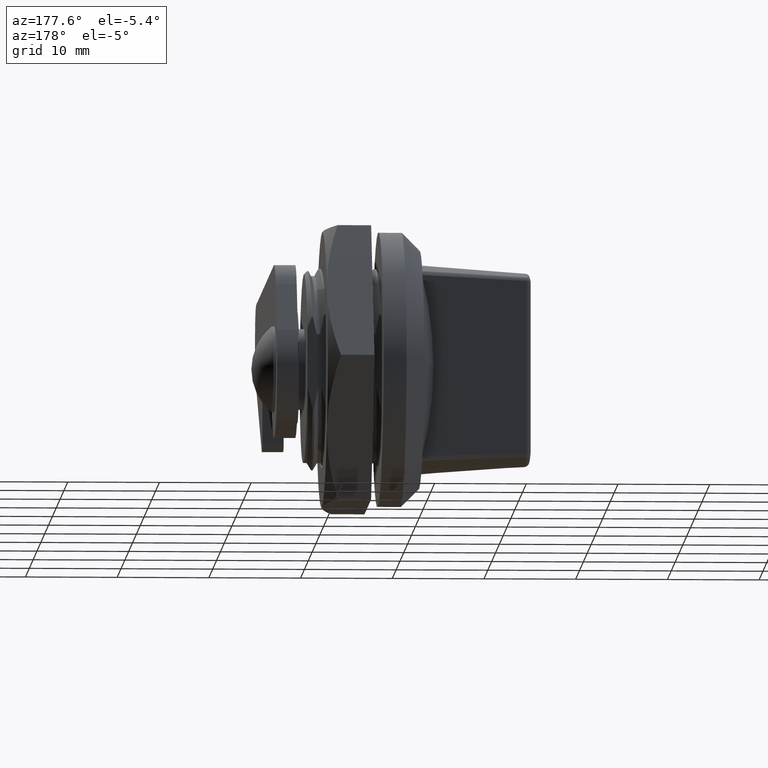
[diagram: clean part render]
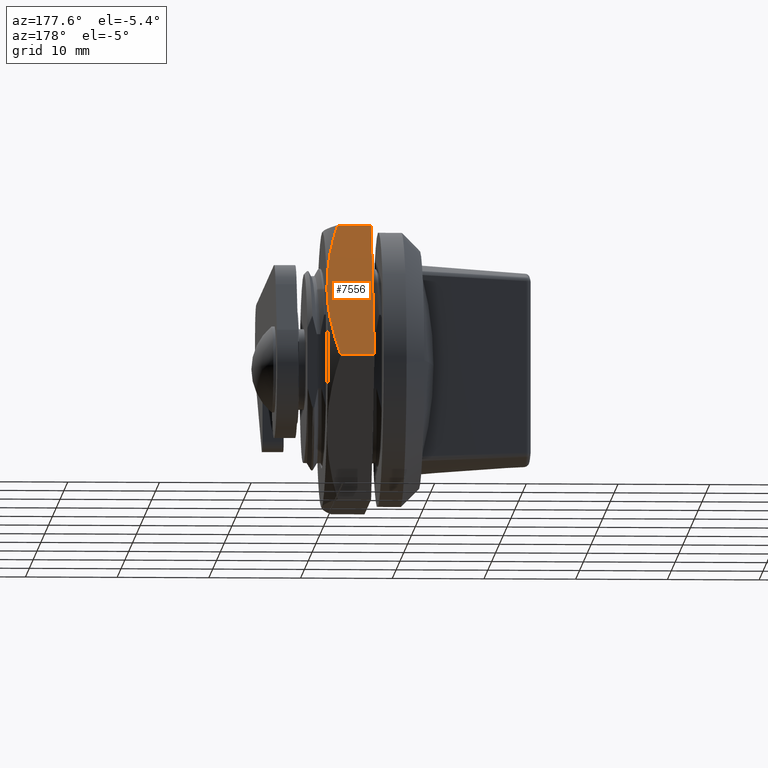
[diagram: same view with one face highlighted and labeled with its STEP entity id]
A machine part, auxiliary view. The second image highlights one B-rep face of the part: STEP entity #7556.
In plain terms, the highlighted planar face has unit normal (-0, -0.866, -0.5).
Its self-contained STEP definition (entity closure, byte-faithful):
#128 = LINE ( 'NONE', #13479, #22433 ) ;
#141 = PLANE ( 'NONE',  #20275 ) ;
#470 = CARTESIAN_POINT ( 'NONE',  ( 8.660254037844280700, -3.660254037754500100, 15.00000000000000000 ) ) ;
#869 = CARTESIAN_POINT ( 'NONE',  ( 8.660254037844280700, -3.660254037754500100, 15.00000000000000000 ) ) ;
#1200 = B_SPLINE_CURVE_WITH_KNOTS ( 'NONE', 3,
 ( #470, #13422, #15601, #2665, #17765, #4802 ),
 .UNSPECIFIED., .F., .F.,
 ( 4, 2, 4 ),
 ( 2.380728851188560000E-007, 0.004381617344485768000, 0.008762996616086418300 ),
 .UNSPECIFIED. ) ;
#1580 = CARTESIAN_POINT ( 'NONE',  ( 13.35786429844072700, -4.999999999909919200, 6.863500354490280800 ) ) ;
#1912 = B_SPLINE_CURVE_WITH_KNOTS ( 'NONE', 3,
 ( #27478, #1580, #16898, #3935, #19063, #6098, #21236, #8286 ),
 .UNSPECIFIED., .F., .F.,
 ( 4, 2, 2, 4 ),
 ( 0.008762996616086418300, 0.01094549440788718200, 0.01312799219968794800, 0.01749298778328947600 ),
 .UNSPECIFIED. ) ;
#2122 = VERTEX_POINT ( 'NONE', #7495 ) ;
#2205 = VECTOR ( 'NONE', #28087, 1000.000000000000000 ) ;
#2665 = CARTESIAN_POINT ( 'NONE',  ( 11.52410143690330100, -4.872315115852518200, 10.03967079970599500 ) ) ;
#2871 = LINE ( 'NONE', #25904, #2205 ) ;
#3364 = EDGE_CURVE ( 'NONE', #2122, #17852, #1912, .T. ) ;
#3935 = CARTESIAN_POINT ( 'NONE',  ( 14.45721671390057000, -4.845787350994418000, 4.959366115490263700 ) ) ;
#4802 = CARTESIAN_POINT ( 'NONE',  ( 12.99038105663197800, -5.000000000000000000, 7.499999999922299500 ) ) ;
#4892 = ORIENTED_EDGE ( 'NONE', *, *, #18773, .F. ) ;
#6098 = CARTESIAN_POINT ( 'NONE',  ( 15.90144680005222200, -4.404967269171186800, 2.457886228456031700 ) ) ;
#6681 = ORIENTED_EDGE ( 'NONE', *, *, #11626, .T. ) ;
#7495 = CARTESIAN_POINT ( 'NONE',  ( 12.99038105663197800, -5.000000000000000000, 7.499999999922299500 ) ) ;
#7556 = ADVANCED_FACE ( 'NONE', ( #16620 ), #141, .F. ) ;
#8234 = VERTEX_POINT ( 'NONE', #869 ) ;
#8286 = CARTESIAN_POINT ( 'NONE',  ( 17.32050807568890200, -3.660254037754500100, -1.942890293094025000E-013 ) ) ;
#8682 = VERTEX_POINT ( 'NONE', #16571 ) ;
#9099 = EDGE_LOOP ( 'NONE', ( #10951, #6681, #14474, #4892, #16187 ) ) ;
#10951 = ORIENTED_EDGE ( 'NONE', *, *, #21471, .T. ) ;
#11019 = DIRECTION ( 'NONE',  ( -0.4999999999999998900, 0.0000000000000000000, 0.8660254037844387100 ) ) ;
#11626 = EDGE_CURVE ( 'NONE', #8234, #2122, #1200, .T. ) ;
#11669 = VERTEX_POINT ( 'NONE', #19954 ) ;
#12960 = VECTOR ( 'NONE', #24158, 1000.000000000000000 ) ;
#13422 = CARTESIAN_POINT ( 'NONE',  ( 9.368606162041095000, -4.069221327340854600, 13.77309813124198900 ) ) ;
#13479 = CARTESIAN_POINT ( 'NONE',  ( 8.660254037844399700, 995.0000000000000000, 15.00000000000000000 ) ) ;
#13632 = LINE ( 'NONE', #21975, #12960 ) ;
#14474 = ORIENTED_EDGE ( 'NONE', *, *, #3364, .T. ) ;
#15601 = CARTESIAN_POINT ( 'NONE',  ( 10.08213230481764300, -4.406149524916513900, 12.53723459942436400 ) ) ;
#15650 = DIRECTION ( 'NONE',  ( 0.0000000000000000000, -1.000000000000000000, 0.0000000000000000000 ) ) ;
#16187 = ORIENTED_EDGE ( 'NONE', *, *, #23096, .F. ) ;
#16571 = CARTESIAN_POINT ( 'NONE',  ( 8.660254037844399700, 0.0000000000000000000, 15.00000000000000000 ) ) ;
#16620 = FACE_OUTER_BOUND ( 'NONE', #9099, .T. ) ;
#16898 = CARTESIAN_POINT ( 'NONE',  ( 13.72699645680316700, -4.968333449719214200, 6.224144701498979700 ) ) ;
#17765 = CARTESIAN_POINT ( 'NONE',  ( 12.25265593111551100, -4.999999999911016100, 8.777777399647812100 ) ) ;
#17852 = VERTEX_POINT ( 'NONE', #23734 ) ;
#18773 = EDGE_CURVE ( 'NONE', #11669, #17852, #2871, .T. ) ;
#19063 = CARTESIAN_POINT ( 'NONE',  ( 14.81988455484271100, -4.755025642542153500, 4.331206988707177400 ) ) ;
#19954 = CARTESIAN_POINT ( 'NONE',  ( 17.32050807568890200, 0.0000000000000000000, -1.989519660128279800E-013 ) ) ;
#20275 = AXIS2_PLACEMENT_3D ( 'NONE', #21791, #23974, #11019 ) ;
#21236 = CARTESIAN_POINT ( 'NONE',  ( 16.61392498976931300, -4.068199972615181200, 1.223837804581333600 ) ) ;
#21471 = EDGE_CURVE ( 'NONE', #8682, #8234, #128, .T. ) ;
#21791 = CARTESIAN_POINT ( 'NONE',  ( 8.660254037844399700, 995.0000000000000000, 15.00000000000000000 ) ) ;
#21975 = CARTESIAN_POINT ( 'NONE',  ( 8.660254037844399700, 0.0000000000000000000, 15.00000000000000000 ) ) ;
#22433 = VECTOR ( 'NONE', #15650, 1000.000000000000000 ) ;
#23096 = EDGE_CURVE ( 'NONE', #8682, #11669, #13632, .T. ) ;
#23734 = CARTESIAN_POINT ( 'NONE',  ( 17.32050807568890200, -3.660254037754500100, -1.942890293094025000E-013 ) ) ;
#23974 = DIRECTION ( 'NONE',  ( -0.8660254037844387100, 0.0000000000000000000, -0.4999999999999998900 ) ) ;
#24158 = DIRECTION ( 'NONE',  ( 0.4999999999999998900, 0.0000000000000000000, -0.8660254037844387100 ) ) ;
#25904 = CARTESIAN_POINT ( 'NONE',  ( 17.32050807568890200, 995.0000000000000000, -1.989519660128279800E-013 ) ) ;
#27478 = CARTESIAN_POINT ( 'NONE',  ( 12.99038105663197800, -5.000000000000000000, 7.499999999922299500 ) ) ;
#28087 = DIRECTION ( 'NONE',  ( 0.0000000000000000000, -1.000000000000000000, 0.0000000000000000000 ) ) ;